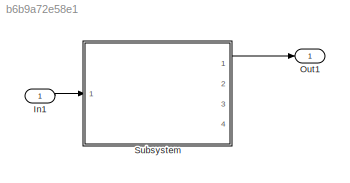
MODEL slx_b6b9a72e58e1
KIND model
CONFIG AbsTol = auto
CONFIG EnableMultiTasking = on
CONFIG FixedStep = auto
CONFIG MaxStep = auto
CONFIG MinStep = auto
CONFIG RelTol = 1e-3
CONFIG SampleTimeConstraint = Unconstrained
CONFIG Solver = ode45
CONFIG SolverName = ode45
CONFIG StartTime = 0.0
CONFIG StopTime = 10.0
BLOCK [Inport] In1
  IconDisplay = Port number
BLOCK [Outport] Out1
  IconDisplay = Port number
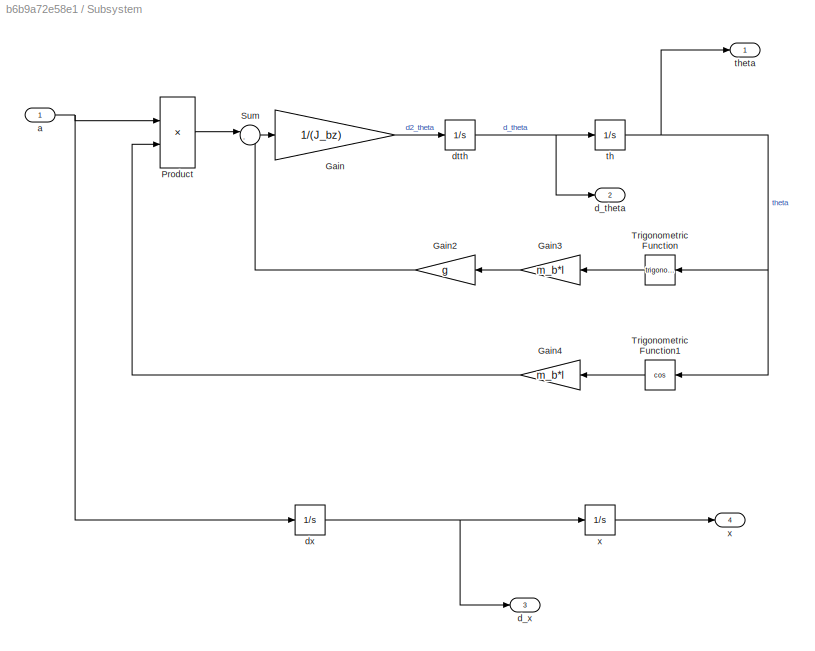
BLOCK [SubSystem] Subsystem
  Ports = [1, 4]
  RequestExecContextInheritance = off
BLOCK [Gain] Subsystem/Gain
  Gain = 1/(J_bz)
  OutDataTypeStr = Inherit: Inherit via internal rule
  ParamDataTypeStr = Inherit: Inherit via internal rule
  SaturateOnIntegerOverflow = off
BLOCK [Gain] Subsystem/Gain2
  Gain = g
  OutDataTypeStr = Inherit: Inherit via internal rule
  ParamDataTypeStr = Inherit: Inherit via internal rule
  SaturateOnIntegerOverflow = off
BLOCK [Gain] Subsystem/Gain3
  Gain = m_b*l
  OutDataTypeStr = Inherit: Inherit via internal rule
  ParamDataTypeStr = Inherit: Inherit via internal rule
  SaturateOnIntegerOverflow = off
BLOCK [Gain] Subsystem/Gain4
  Gain = m_b*l
  OutDataTypeStr = Inherit: Inherit via internal rule
  ParamDataTypeStr = Inherit: Inherit via internal rule
  SaturateOnIntegerOverflow = off
BLOCK [Product] Subsystem/Product
  InputSameDT = off
  OutDataTypeStr = Inherit: Inherit via internal rule
  Ports = [2, 1]
  RndMeth = Floor
  SaturateOnIntegerOverflow = off
BLOCK [Sum] Subsystem/Sum
  IconShape = round
  InputSameDT = off
  Inputs = |-+
  OutDataTypeStr = Inherit: Inherit via internal rule
  Ports = [2, 1]
  SaturateOnIntegerOverflow = off
BLOCK [Trigonometry] Subsystem/Trigonometric Function
  Ports = [1, 1]
BLOCK [Trigonometry] Subsystem/Trigonometric Function1
  Operator = cos
  Ports = [1, 1]
BLOCK [Inport] Subsystem/a
  IconDisplay = Port number
BLOCK [Outport] Subsystem/d_theta
  IconDisplay = Port number
  Port = 2
BLOCK [Outport] Subsystem/d_x
  IconDisplay = Port number
  Port = 3
BLOCK [Integrator] Subsystem/dtth
  Ports = [1, 1]
BLOCK [Integrator] Subsystem/dx
  Ports = [1, 1]
BLOCK [Integrator] Subsystem/th
  Ports = [1, 1]
BLOCK [Outport] Subsystem/theta
  IconDisplay = Port number
BLOCK [Outport] Subsystem/x
  IconDisplay = Port number
  Port = 4
BLOCK [Integrator] Subsystem/x   
  Ports = [1, 1]
LINE In1:1 -> Subsystem:1
LINE Subsystem/Gain2:1 -> Subsystem/Sum:2
LINE Subsystem/Gain3:1 -> Subsystem/Gain2:1
LINE Subsystem/Gain4:1 -> Subsystem/Product:2
LINE Subsystem/Gain:1 -> Subsystem/dtth:1
LINE Subsystem/Product:1 -> Subsystem/Sum:1
LINE Subsystem/Sum:1 -> Subsystem/Gain:1
LINE Subsystem/Trigonometric Function1:1 -> Subsystem/Gain4:1
LINE Subsystem/Trigonometric Function:1 -> Subsystem/Gain3:1
NET Subsystem/a:1 -> Subsystem/Product:1, Subsystem/dx:1
NET Subsystem/dtth:1 -> Subsystem/d_theta:1, Subsystem/th:1
NET Subsystem/dx:1 -> Subsystem/d_x:1, Subsystem/x   :1
NET Subsystem/th:1 -> Subsystem/Trigonometric Function1:1, Subsystem/Trigonometric Function:1, Subsystem/theta:1
LINE Subsystem/x   :1 -> Subsystem/x:1
LINE Subsystem:1 -> Out1:1
note: NET lines group one-source signal fan-out (src -> all destinations, sorted); 1:1 wires keep LINE
